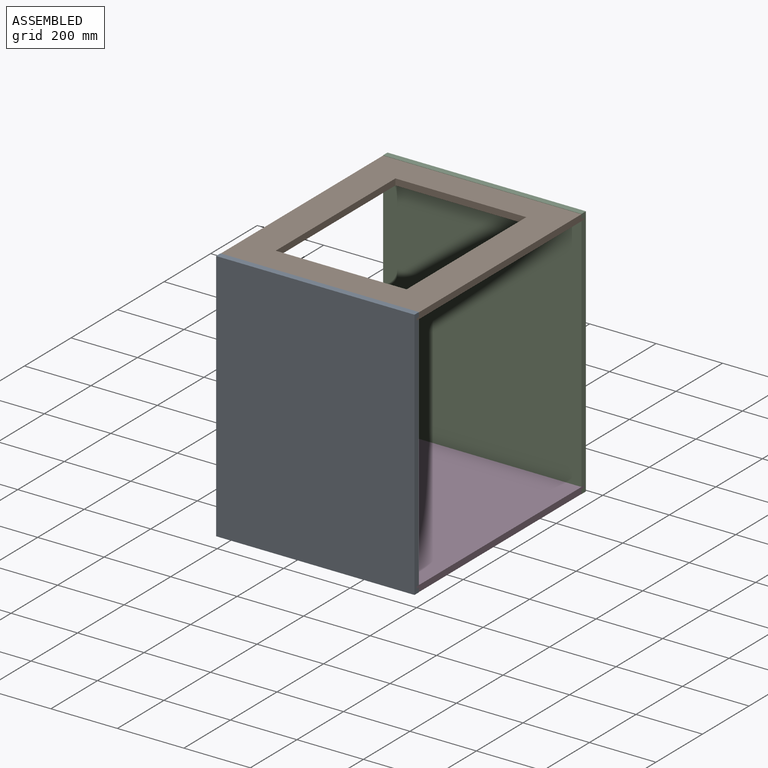
[diagram: assembled view]
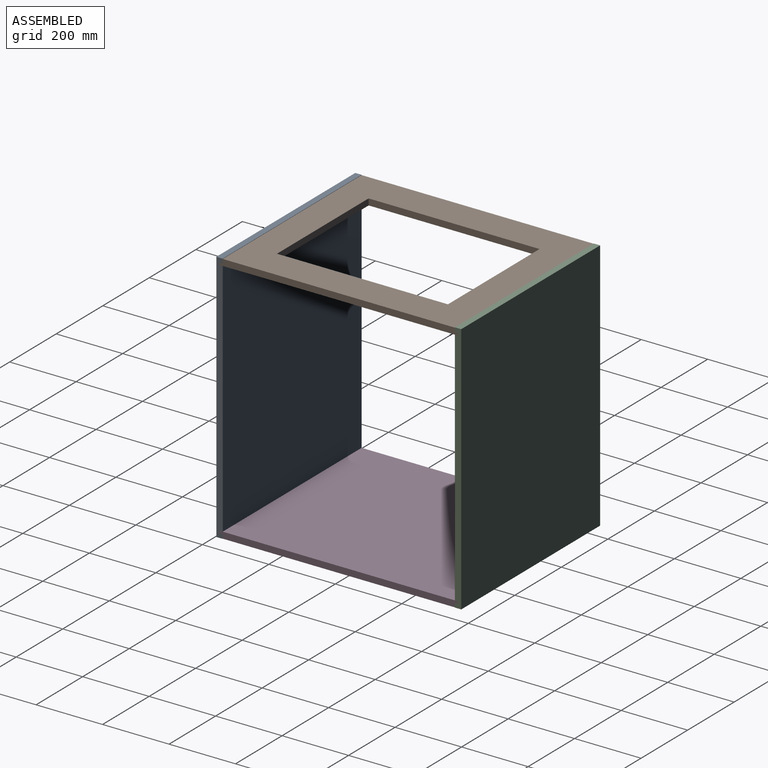
[diagram: assembled view, second angle]
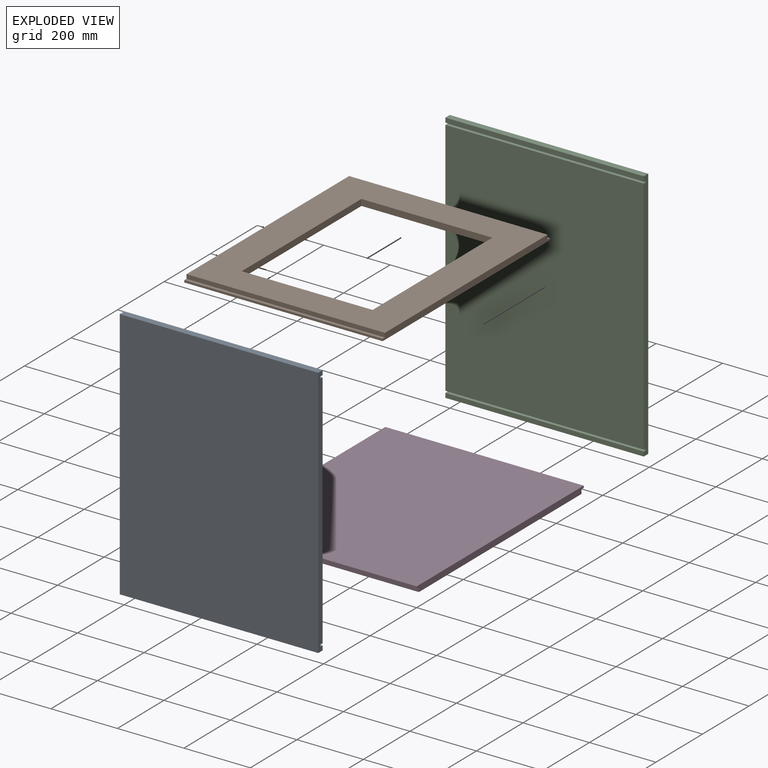
[diagram: exploded view]
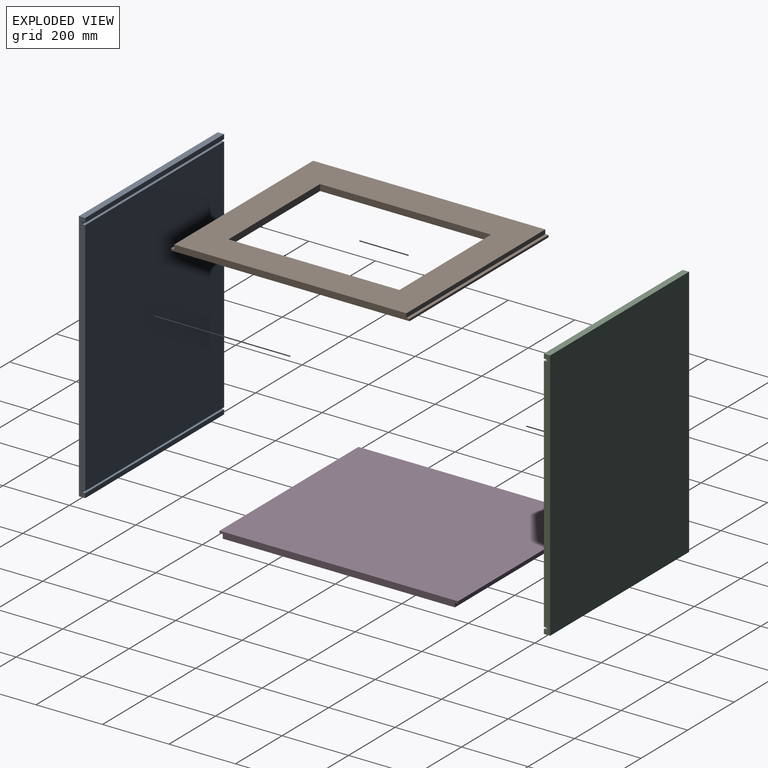
[diagram: exploded view, second angle]
ASSEMBLY  parts=4 mates=3
PART A: 14 faces, bbox 596.9x19.1x762 mm
  f0: plane 596.9x13.51mm, normal (0,-1,0), area 8065.8mm2, adj f1,f2,f7,f11
  f1: plane 762x19.05mm, normal (1,0,0), area 14400.5mm2, adj f0,f3,f4,f5,f6,f7,f8,f9
  f2: plane 762x19.05mm, normal (-1,0,0), area 14400.5mm2, adj f0,f3,f4,f5,f6,f7,f8,f9
  f3: plane 722.84x596.9mm, normal (0,-1,0), area 431461.1mm2, adj f1,f2,f10,f12
  f4: plane 596.9x13.51mm, normal (0,-1,0), area 8065.8mm2, adj f1,f2,f5,f8
  f5: plane 596.9x19.05mm, normal (0,0,-1), area 11370.9mm2, adj f1,f2,f4,f6
  f6: plane 762x596.9mm, normal (0,1,0), area 454837.8mm2, adj f1,f2,f5,f7
  f7: plane 596.9x19.05mm, normal (0,0,1), area 11370.9mm2, adj f0,f1,f2,f6
  f8: plane 596.9x9.53mm, normal (0,0,1), area 5685.5mm2, adj f1,f2,f4,f9
  f9: plane 596.9x5.79mm, normal (0,-1,0), area 3454.8mm2, adj f1,f2,f8,f10
  f10: plane 596.9x9.53mm, normal (0,0,-1), area 5685.5mm2, adj f1,f2,f3,f9
  f11: plane 596.9x9.53mm, normal (0,0,-1), area 5685.5mm2, adj f0,f1,f2,f13
  f12: plane 596.9x9.53mm, normal (0,0,1), area 5685.5mm2, adj f1,f2,f3,f13
  f13: plane 596.9x6.35mm, normal (0,-1,0), area 3790.3mm2, adj f1,f2,f11,f12
PART B: 14 faces, bbox 717.6x596.9x19.1 mm
  f0: plane 698.5x596.9mm, normal (0,0,-1), area 214435.1mm2, adj f2,f5,f7,f9,f10,f11,f12,f13
  f1: plane 717.55x596.9mm, normal (0,0,1), area 225806mm2, adj f2,f3,f4,f5,f10,f11,f12,f13
  f2: plane 717.55x19.05mm, normal (0,-1,0), area 13427.4mm2, adj f0,f1,f3,f4,f6,f7,f8,f9
  f3: plane 596.9x6.35mm, normal (1,0,0), area 3790.3mm2, adj f1,f2,f5,f8
  f4: plane 596.9x6.35mm, normal (-1,0,0), area 3790.3mm2, adj f1,f2,f5,f6
  f5: plane 717.55x19.05mm, normal (0,1,0), area 13427.4mm2, adj f0,f1,f3,f4,f6,f7,f8,f9
  f6: plane 596.9x9.53mm, normal (0,0,-1), area 5685.5mm2, adj f2,f4,f5,f7
  f7: plane 596.9x12.7mm, normal (-1,0,0), area 7580.6mm2, adj f0,f2,f5,f6
  f8: plane 596.9x9.53mm, normal (0,0,-1), area 5685.5mm2, adj f2,f3,f5,f9
  f9: plane 596.9x12.7mm, normal (1,0,0), area 7580.6mm2, adj f0,f2,f5,f8
  f10: plane 393.7x19.05mm, normal (-1,0,0), area 7500mm2, adj f0,f1,f11,f13
  f11: plane 514.35x19.05mm, normal (0,-1,0), area 9798.4mm2, adj f0,f1,f10,f12
  f12: plane 393.7x19.05mm, normal (1,0,0), area 7500mm2, adj f0,f1,f11,f13
  f13: plane 514.35x19.05mm, normal (0,1,0), area 9798.4mm2, adj f0,f1,f10,f12
PART C: same geometry as A
PART D: 10 faces, bbox 717.6x596.9x19.1 mm
  f0: plane 717.55x19.05mm, normal (0,-1,0), area 13427.4mm2, adj f1,f2,f3,f5,f6,f7,f8,f9
  f1: plane 596.9x6.35mm, normal (1,0,0), area 3790.3mm2, adj f0,f4,f5,f8
  f2: plane 596.9x6.35mm, normal (-1,0,0), area 3790.3mm2, adj f0,f4,f5,f6
  f3: plane 698.5x596.9mm, normal (0,0,-1), area 416934.6mm2, adj f0,f4,f7,f9
  f4: plane 717.55x19.05mm, normal (0,1,0), area 13427.4mm2, adj f1,f2,f3,f5,f6,f7,f8,f9
  f5: plane 717.55x596.9mm, normal (0,0,1), area 428305.6mm2, adj f0,f1,f2,f4
  f6: plane 596.9x9.53mm, normal (0,0,-1), area 5685.5mm2, adj f0,f2,f4,f7
  f7: plane 596.9x12.7mm, normal (-1,0,0), area 7580.6mm2, adj f0,f3,f4,f6
  f8: plane 596.9x9.53mm, normal (0,0,-1), area 5685.5mm2, adj f0,f1,f4,f9
  f9: plane 596.9x12.7mm, normal (1,0,0), area 7580.6mm2, adj f0,f3,f4,f8
PLACE A rot(axis=(0,0,-1),180deg) t=(-224.19,-955.56,-401.68)mm
PLACE B rot(axis=(-0.71,0.71,0),180deg) t=(-224.19,-247.53,359.51)mm
PLACE C rot(axis=(0.21,-0.13,0.97),0deg) t=(-821.09,-257.06,-401.68)mm
PLACE D rot(axis=(0,0,1),90deg) t=(-224.19,-965.08,-401.14)mm
MATE fastened A.f9 <-> D.f2  axis (0,1,0) through (-522.64,-965.08,-385.27)mm
MATE fastened C.f13 <-> B.f4  axis (0,-1,0) through (-522.64,-247.53,343.64)mm
MATE fastened D.f1 <-> C.f9  axis (0,1,0) through (-522.64,-247.53,-385.27)mm
